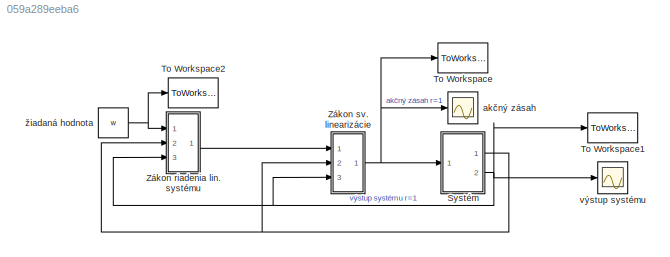
MODEL slx_059a289eeba6
KIND model
CONFIG AbsTol = auto
CONFIG EnableMultiTasking = off
CONFIG FixedStep = auto
CONFIG MaxStep = auto
CONFIG MinStep = auto
CONFIG RelTol = 1e-3
CONFIG SampleTimeConstraint = Unconstrained
CONFIG Solver = VariableStepAuto
CONFIG SolverName = VariableStepAuto
CONFIG StartTime = 0.0
CONFIG StopTime = 10.0
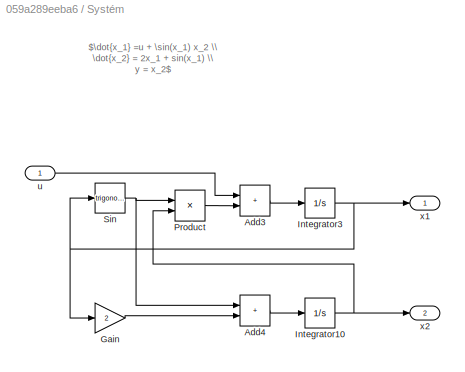
BLOCK [SubSystem] Systém
  Ports = [1, 2]
  RequestExecContextInheritance = off
BLOCK [Sum] Systém/Add3
  IconShape = rectangular
  Ports = [2, 1]
BLOCK [Sum] Systém/Add4
  IconShape = rectangular
  Ports = [2, 1]
BLOCK [Gain] Systém/Gain
  Gain = 2
BLOCK [Integrator] Systém/Integrator10
  Ports = [1, 1]
BLOCK [Integrator] Systém/Integrator3
  Ports = [1, 1]
BLOCK [Product] Systém/Product
  Ports = [2, 1]
BLOCK [Trigonometry] Systém/Sin
  Ports = [1, 1]
BLOCK [Inport] Systém/u
BLOCK [Outport] Systém/x1
BLOCK [Outport] Systém/x2
  Port = 2
BLOCK [ToWorkspace] To Workspace
  FixptAsFi = on
  MaxDataPoints = inf
  Ports = [1]
  SampleTime = -1
  SaveFormat = Timeseries
  VariableName = u
BLOCK [ToWorkspace] To Workspace1
  FixptAsFi = on
  MaxDataPoints = inf
  Ports = [1]
  SampleTime = -1
  SaveFormat = Timeseries
  VariableName = y
BLOCK [ToWorkspace] To Workspace2
  FixptAsFi = on
  MaxDataPoints = inf
  Ports = [1]
  SampleTime = -1
  SaveFormat = Timeseries
  VariableName = r
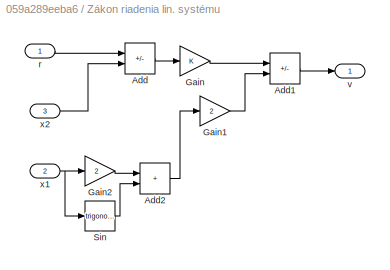
BLOCK [SubSystem] Zákon riadenia lin. systému
  Ports = [3, 1]
  RequestExecContextInheritance = off
BLOCK [Sum] Zákon riadenia lin. systému/Add
  IconShape = rectangular
  Inputs = +-
  Ports = [2, 1]
BLOCK [Sum] Zákon riadenia lin. systému/Add1
  IconShape = rectangular
  Inputs = +-
  Ports = [2, 1]
BLOCK [Sum] Zákon riadenia lin. systému/Add2
  IconShape = rectangular
  Ports = [2, 1]
BLOCK [Gain] Zákon riadenia lin. systému/Gain
BLOCK [Gain] Zákon riadenia lin. systému/Gain1
  Gain = 2
BLOCK [Gain] Zákon riadenia lin. systému/Gain2
  Gain = 2
BLOCK [Trigonometry] Zákon riadenia lin. systému/Sin
  Ports = [1, 1]
BLOCK [Inport] Zákon riadenia lin. systému/r
BLOCK [Outport] Zákon riadenia lin. systému/v
BLOCK [Inport] Zákon riadenia lin. systému/x1
  Port = 2
BLOCK [Inport] Zákon riadenia lin. systému/x2
  Port = 3
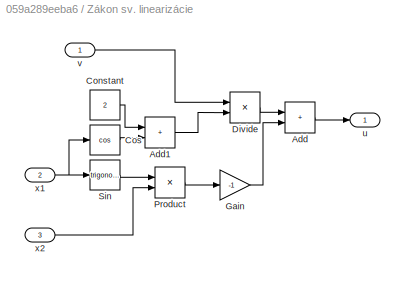
BLOCK [SubSystem] Zákon sv. linearizácie
  Ports = [3, 1]
  RequestExecContextInheritance = off
BLOCK [Sum] Zákon sv. linearizácie/Add
  IconShape = rectangular
  Ports = [2, 1]
BLOCK [Sum] Zákon sv. linearizácie/Add1
  IconShape = rectangular
  Ports = [2, 1]
BLOCK [Constant] Zákon sv. linearizácie/Constant
  Value = 2
BLOCK [Trigonometry] Zákon sv. linearizácie/Cos
  Operator = cos
  Ports = [1, 1]
BLOCK [Product] Zákon sv. linearizácie/Divide
  Inputs = */
  Ports = [2, 1]
BLOCK [Gain] Zákon sv. linearizácie/Gain
  Gain = -1
BLOCK [Product] Zákon sv. linearizácie/Product
  Ports = [2, 1]
BLOCK [Trigonometry] Zákon sv. linearizácie/Sin
  Ports = [1, 1]
BLOCK [Outport] Zákon sv. linearizácie/u
BLOCK [Inport] Zákon sv. linearizácie/v
BLOCK [Inport] Zákon sv. linearizácie/x1
  Port = 2
BLOCK [Inport] Zákon sv. linearizácie/x2
  Port = 3
BLOCK [Scope] akčný zásah
  Floating = off
  NameLocation = top
  NumInputPorts = 1
  Ports = [1]
  ScopeSpecificationString = Simulink.scopes.TimeScopeBlockCfg('CurrentConfiguration', extmgr.ConfigurationSet(extmgr.Configuration('Core','General UI',true),extmgr.Configuration('Core','Source UI',true),extmgr.Configuration('Sources','WiredSimulink',true,'DataLoggingVariableName','ScopeData1'),extmgr.Configuration('Visuals','Time Domain',true,'SerializedDisplays',{struct('MinYLimReal','-0.41261','MaxYLimReal','1.8977','YLabe...<+1370ch>
BLOCK [Scope] výstup systému
  Floating = off
  NameLocation = top
  NumInputPorts = 1
  Ports = [1]
  ScopeSpecificationString = Simulink.scopes.TimeScopeBlockCfg('CurrentConfiguration', extmgr.ConfigurationSet(extmgr.Configuration('Core','General UI',true),extmgr.Configuration('Core','Source UI',true),extmgr.Configuration('Sources','WiredSimulink',true),extmgr.Configuration('Visuals','Time Domain',true,'SerializedDisplays',{struct('MinYLimReal','-0.12494','MaxYLimReal','1.12444','YLabelReal','','MinYLimMag','0.00000','MaxY...<+1368ch>
BLOCK [Constant] žiadaná hodnota
  NameLocation = top
  Value = w
ANNOTATION Systém: $\dot{x_1} =u + \sin(x_1) x_2 \\ \dot{x_2} = 2x_1 + sin(x_1) \\ y = x_2$
LINE Systém/Add3:1 -> Systém/Integrator3:1
LINE Systém/Add4:1 -> Systém/Integrator10:1
LINE Systém/Gain:1 -> Systém/Add4:2
NET Systém/Integrator10:1 -> Systém/Product:2, Systém/x2:1
NET Systém/Integrator3:1 -> Systém/Gain:1, Systém/Sin:1, Systém/x1:1
LINE Systém/Product:1 -> Systém/Add3:2
NET Systém/Sin:1 -> Systém/Add4:1, Systém/Product:1
LINE Systém/u:1 -> Systém/Add3:1
NET Systém:1 -> Zákon riadenia lin. systému:2, Zákon sv. linearizácie:2
NET Systém:2 -> To Workspace1:1, Zákon riadenia lin. systému:3, Zákon sv. linearizácie:3, výstup systému:1
LINE Zákon riadenia lin. systému/Add1:1 -> Zákon riadenia lin. systému/v:1
LINE Zákon riadenia lin. systému/Add2:1 -> Zákon riadenia lin. systému/Gain1:1
LINE Zákon riadenia lin. systému/Add:1 -> Zákon riadenia lin. systému/Gain:1
LINE Zákon riadenia lin. systému/Gain1:1 -> Zákon riadenia lin. systému/Add1:2
LINE Zákon riadenia lin. systému/Gain2:1 -> Zákon riadenia lin. systému/Add2:1
LINE Zákon riadenia lin. systému/Gain:1 -> Zákon riadenia lin. systému/Add1:1
LINE Zákon riadenia lin. systému/Sin:1 -> Zákon riadenia lin. systému/Add2:2
LINE Zákon riadenia lin. systému/r:1 -> Zákon riadenia lin. systému/Add:1
NET Zákon riadenia lin. systému/x1:1 -> Zákon riadenia lin. systému/Gain2:1, Zákon riadenia lin. systému/Sin:1
LINE Zákon riadenia lin. systému/x2:1 -> Zákon riadenia lin. systému/Add:2
LINE Zákon riadenia lin. systému:1 -> Zákon sv. linearizácie:1
LINE Zákon sv. linearizácie/Add1:1 -> Zákon sv. linearizácie/Divide:2
LINE Zákon sv. linearizácie/Add:1 -> Zákon sv. linearizácie/u:1
LINE Zákon sv. linearizácie/Constant:1 -> Zákon sv. linearizácie/Add1:1
LINE Zákon sv. linearizácie/Cos:1 -> Zákon sv. linearizácie/Add1:2
LINE Zákon sv. linearizácie/Divide:1 -> Zákon sv. linearizácie/Add:1
LINE Zákon sv. linearizácie/Gain:1 -> Zákon sv. linearizácie/Add:2
LINE Zákon sv. linearizácie/Product:1 -> Zákon sv. linearizácie/Gain:1
LINE Zákon sv. linearizácie/Sin:1 -> Zákon sv. linearizácie/Product:1
LINE Zákon sv. linearizácie/v:1 -> Zákon sv. linearizácie/Divide:1
NET Zákon sv. linearizácie/x1:1 -> Zákon sv. linearizácie/Cos:1, Zákon sv. linearizácie/Sin:1
LINE Zákon sv. linearizácie/x2:1 -> Zákon sv. linearizácie/Product:2
NET Zákon sv. linearizácie:1 -> Systém:1, To Workspace:1, akčný zásah:1
NET žiadaná hodnota:1 -> To Workspace2:1, Zákon riadenia lin. systému:1
note: NET lines group one-source signal fan-out (src -> all destinations, sorted); 1:1 wires keep LINE
